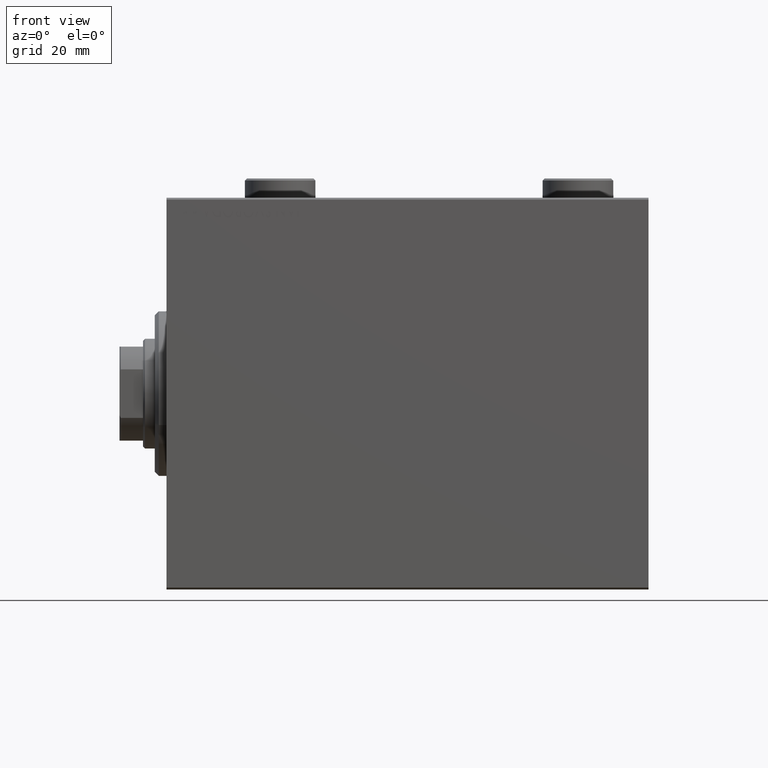
[diagram: clean part render]
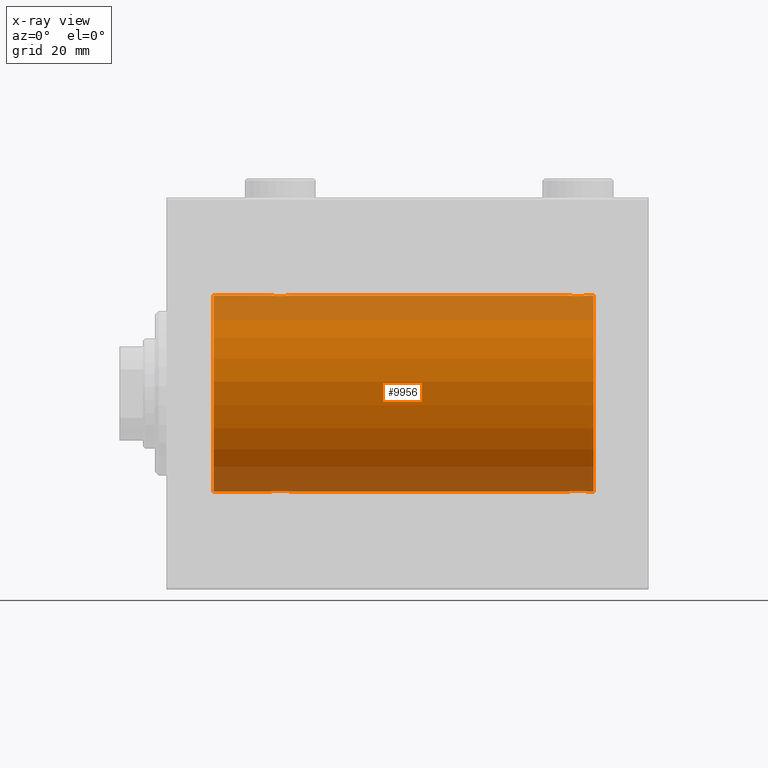
[diagram: x-ray — body ghosted, one internal face saturated and labeled with its STEP entity id]
A machine part, front view, then the same camera in x-ray: the body is ghosted and one INTERNAL B-rep face — a face not visible from any outside direction — is saturated and labeled: STEP entity #9956.
In plain terms, the highlighted cylindrical surface (partial cylindrical patch) has radius 25 mm, axis along (-1, -0, -0).
Its self-contained STEP definition (entity closure, byte-faithful):
#472 = CARTESIAN_POINT ( 'NONE',  ( 29.16706495178059910, -2.499872792855075687, -24.87469871246081965 ) ) ;
#814 = CARTESIAN_POINT ( 'NONE',  ( 103.4746381775692043, -1.987446652080271159, 24.92104239223420592 ) ) ;
#925 = CARTESIAN_POINT ( 'NONE',  ( 26.83172358506042698, -1.255214705003176112, -24.96884293994577320 ) ) ;
#1041 = CARTESIAN_POINT ( 'NONE',  ( 31.16827641493957302, -1.255214705003183440, 24.96884293994578385 ) ) ;
#1152 = CARTESIAN_POINT ( 'NONE',  ( 28.35439333851368815, -2.420689345803754833, -24.88254961038873958 ) ) ;
#1281 = CARTESIAN_POINT ( 'NONE',  ( 107.2476025101955486, -1.106703319666888508, -24.97594585958024282 ) ) ;
#1510 = CARTESIAN_POINT ( 'NONE',  ( 103.0146196628290198, -1.528152964861324570, -24.95362559291378091 ) ) ;
#1728 = CARTESIAN_POINT ( 'NONE',  ( 107.5000000000000000, 3.061616978466108082E-15, -25.00000000000000000 ) ) ;
#2564 = CARTESIAN_POINT ( 'NONE',  ( 105.1632358963854159, -2.500125740978206057, 24.87467329022545570 ) ) ;
#2636 = CARTESIAN_POINT ( 'NONE',  ( 31.43349355239747567, -0.6588655613945881839, 24.99312727339970053 ) ) ;
#2778 = AXIS2_PLACEMENT_3D ( 'NONE', #38154, #10850, #34694 ) ;
#3013 = CARTESIAN_POINT ( 'NONE',  ( 107.4334935523974792, -0.6588655613945869627, 24.99312727339970053 ) ) ;
#3903 = CARTESIAN_POINT ( 'NONE',  ( 28.19564339083697746, -2.372734907014167671, -24.88722742718433167 ) ) ;
#4129 = CARTESIAN_POINT ( 'NONE',  ( 26.50000000000001066, -0.3305063766663757785, -25.00000000000000355 ) ) ;
#4258 = CARTESIAN_POINT ( 'NONE',  ( 26.62784030591392792, -0.8058335233485480753, 24.98746277938383287 ) ) ;
#4486 = CARTESIAN_POINT ( 'NONE',  ( 30.65121133559112820, -1.884161199660616459, 24.92916496727982434 ) ) ;
#4594 = CARTESIAN_POINT ( 'NONE',  ( 30.65383336149337623, -1.881857718844709870, -24.92933960374833191 ) ) ;
#4711 = CARTESIAN_POINT ( 'NONE',  ( 26.57985090779070347, -0.6480119923854229524, 24.99212088949390420 ) ) ;
#4821 = CARTESIAN_POINT ( 'NONE',  ( 30.52536182243080631, -1.987446652080256504, -24.92104239223419881 ) ) ;
#5041 = CIRCLE ( 'NONE', #43811, 25.00000000000000000 ) ;
#5177 = CARTESIAN_POINT ( 'NONE',  ( 27.11587617213528745, -1.651251241585102836, 24.94567559498349141 ) ) ;
#5786 = CARTESIAN_POINT ( 'NONE',  ( 105.6456066614863119, -2.420689345803769044, 24.88254961038873958 ) ) ;
#5855 = CARTESIAN_POINT ( 'NONE',  ( 31.49999999999998579, -0.3305063766663721148, 25.00000000000000000 ) ) ;
#6223 = CARTESIAN_POINT ( 'NONE',  ( 106.1072384583841028, -2.247417070759907709, 24.89885693081946272 ) ) ;
#6452 = CARTESIAN_POINT ( 'NONE',  ( 106.8818595414864632, -1.653834020452947362, 24.94550385189584318 ) ) ;
#6681 = LINE ( 'NONE', #27777, #29220 ) ;
#6810 = FACE_OUTER_BOUND ( 'NONE', #12047, .T. ) ;
#7458 = CARTESIAN_POINT ( 'NONE',  ( 102.5798509077906999, -0.6480119923854288366, 24.99212088949390775 ) ) ;
#7797 = CARTESIAN_POINT ( 'NONE',  ( 27.11814045851354393, -1.653834020452933151, -24.94550385189584674 ) ) ;
#7921 = CARTESIAN_POINT ( 'NONE',  ( 27.01250184165601809, -1.525407911884367085, 24.95379469572361941 ) ) ;
#8032 = CARTESIAN_POINT ( 'NONE',  ( 26.75393620905933645, -1.109818057797413715, -24.97580694515542277 ) ) ;
#8155 = CARTESIAN_POINT ( 'NONE',  ( 105.3294768011426754, -2.483544361357281183, -24.87635491893501793 ) ) ;
#8600 = CARTESIAN_POINT ( 'NONE',  ( 29.80435660916301899, -2.372734907014175665, 24.88722742718433878 ) ) ;
#8608 = CARTESIAN_POINT ( 'NONE',  ( 102.5665064476025066, -0.6588655613946003964, -24.99312727339970053 ) ) ;
#9214 = CARTESIAN_POINT ( 'NONE',  ( 107.2460637909406813, -1.109818057797417490, 24.97580694515541921 ) ) ;
#9285 = CARTESIAN_POINT ( 'NONE',  ( 31.24606379094067066, -1.109818057797417046, 24.97580694515541921 ) ) ;
#9447 = CARTESIAN_POINT ( 'NONE',  ( 106.9853803371709375, -1.528152964861310803, 24.95362559291378091 ) ) ;
#9539 = CARTESIAN_POINT ( 'NONE',  ( 109.0000000000000000, 3.061616997868383043E-15, -25.00000000000000000 ) ) ;
#9881 = CARTESIAN_POINT ( 'NONE',  ( 106.5225677434019502, -1.989585286700258138, 24.92087098724766747 ) ) ;
#9956 = ADVANCED_FACE ( 'NONE', ( #6810 ), #38669, .F. ) ;
#10402 = ORIENTED_EDGE ( 'NONE', *, *, #44524, .T. ) ;
#10467 = DIRECTION ( 'NONE',  ( 0.000000000000000000, 0.000000000000000000, 1.000000000000000000 ) ) ;
#10850 = DIRECTION ( 'NONE',  ( -1.000000000000000000, 0.000000000000000000, 0.000000000000000000 ) ) ;
#11085 = VERTEX_POINT ( 'NONE', #28525 ) ;
#11203 = B_SPLINE_CURVE_WITH_KNOTS ( 'NONE', 3,
 ( #32091, #32545, #14903, #14449, #11468, #11703, #38759, #31861, #43324, #4594, #4821, #14685, #18123, #18574, #25460, #32323, #472, #28882, #28652, #1152, #3903, #29344, #22243, #35771, #25006, #7797, #42636, #925, #8032, #21791, #4129, #43104 ),
 .UNSPECIFIED., .F., .F.,
 ( 4, 2, 2, 2, 2, 2, 2, 2, 2, 2, 2, 2, 2, 2, 2, 4 ),
 ( 0.007821024441662299820, 0.008309723826317909692, 0.008798423210973517830, 0.009287122595629124233, 0.009775821980284728902, 0.01026452136494033357, 0.01075322074959593997, 0.01124192013425154464, 0.01173061951890715104, 0.01221931890356275571, 0.01270801828821836038, 0.01319671767287396852, 0.01368541705752957319, 0.01417411644218517959, 0.01466281582684078426, 0.01564021459615199533 ),
 .UNSPECIFIED. ) ;
#11468 = CARTESIAN_POINT ( 'NONE',  ( 31.37215969408608274, -0.8058335233485438565, -24.98746277938383997 ) ) ;
#11590 = CARTESIAN_POINT ( 'NONE',  ( 29.16323589638543723, -2.500125740978195843, 24.87467329022545570 ) ) ;
#11597 = CARTESIAN_POINT ( 'NONE',  ( 103.4774322565981208, -1.989585286700257694, -24.92087098724766747 ) ) ;
#11703 = CARTESIAN_POINT ( 'NONE',  ( 31.24760251019551305, -1.106703319666880514, -24.97594585958023927 ) ) ;
#11820 = CARTESIAN_POINT ( 'NONE',  ( 26.50000000000000711, -0.1631750940176214526, 25.00000000000000711 ) ) ;
#12041 = CARTESIAN_POINT ( 'NONE',  ( 28.35095609830903740, -2.419770561643910689, 24.88263927071751169 ) ) ;
#12047 = EDGE_LOOP ( 'NONE', ( #32068, #40910, #10402, #41772, #43935, #19470, #45188, #28497, #44794, #34266, #40111, #17008 ) ) ;
#12049 = CARTESIAN_POINT ( 'NONE',  ( 104.8367641036145415, -2.500125740978204725, -24.87467329022545570 ) ) ;
#12203 = DIRECTION ( 'NONE',  ( -1.000000000000000000, 0.000000000000000000, 0.000000000000000000 ) ) ;
#12272 = CARTESIAN_POINT ( 'NONE',  ( 104.1956433908369490, -2.372734907014183214, -24.88722742718433523 ) ) ;
#12437 = CARTESIAN_POINT ( 'NONE',  ( 102.8298870971907775, -1.252049606094350453, 24.96900299967627390 ) ) ;
#12456 = CARTESIAN_POINT ( 'NONE',  ( 109.0000000000000000, 0.000000000000000000, 25.00000000000000000 ) ) ;
#13000 = CARTESIAN_POINT ( 'NONE',  ( 11.99999999999999645, 0.000000000000000000, 25.00000000000000000 ) ) ;
#13105 = CARTESIAN_POINT ( 'NONE',  ( 104.8329350482193973, -2.499872792855093451, 24.87469871246082320 ) ) ;
#13204 = B_SPLINE_CURVE_WITH_KNOTS ( 'NONE', 3,
 ( #1728, #43444, #15491, #26269, #14808, #1281, #25811, #39786, #43670, #32443, #18937, #29012, #43000, #35903, #15715, #8155, #22149, #12049, #22599, #29466, #12272, #22830, #36114, #11597, #26035, #32913, #1510, #39336, #40013, #8608, #25358, #36794 ),
 .UNSPECIFIED., .F., .F.,
 ( 4, 2, 2, 2, 2, 2, 2, 2, 2, 2, 2, 2, 2, 2, 2, 4 ),
 ( 0.007821024441662320636, 0.008309723826317927040, 0.008798423210973533443, 0.009287122595629141580, 0.009775821980284747983, 0.01026452136494035439, 0.01075322074959596079, 0.01124192013425156719, 0.01173061951890717533, 0.01221931890356278000, 0.01270801828821838814, 0.01319671767287399454, 0.01368541705752960094, 0.01417411644218520735, 0.01466281582684081375, 0.01564021459615204390 ),
 .UNSPECIFIED. ) ;
#13330 = CARTESIAN_POINT ( 'NONE',  ( 107.5000000000000426, -0.3305063766663758895, 25.00000000000000355 ) ) ;
#14054 = VERTEX_POINT ( 'NONE', #36780 ) ;
#14385 = CARTESIAN_POINT ( 'NONE',  ( 109.0000000000000000, 3.061616997868383043E-15, -25.00000000000000000 ) ) ;
#14449 = CARTESIAN_POINT ( 'NONE',  ( 31.42014909220928942, -0.6480119923854186226, -24.99212088949390420 ) ) ;
#14570 = CARTESIAN_POINT ( 'NONE',  ( 102.5158215994234183, -0.3254210271412264488, 24.99840249400844883 ) ) ;
#14685 = CARTESIAN_POINT ( 'NONE',  ( 30.25383195424503313, -2.169003991399864884, -24.90589728951138682 ) ) ;
#14808 = CARTESIAN_POINT ( 'NONE',  ( 107.3721596940861076, -0.8058335233485500737, -24.98746277938383287 ) ) ;
#14903 = CARTESIAN_POINT ( 'NONE',  ( 31.48417840057656747, -0.3254210271412188993, -24.99840249400844883 ) ) ;
#15024 = CARTESIAN_POINT ( 'NONE',  ( 30.52256774340189693, -1.989585286700245037, 24.92087098724766747 ) ) ;
#15030 = VERTEX_POINT ( 'NONE', #22052 ) ;
#15179 = B_SPLINE_CURVE_WITH_KNOTS ( 'NONE', 3,
 ( #15872, #26639, #14570, #7458, #21913, #43833, #12437, #40398, #35416, #28546, #814, #28764, #42747, #45171, #37178, #26867, #13105, #2564, #34186, #5786, #37859, #6223, #40849, #9881, #20222, #6452, #9447, #34417, #9214, #3013, #13330, #23209 ),
 .UNSPECIFIED., .F., .F.,
 ( 4, 2, 2, 2, 2, 2, 2, 2, 2, 2, 2, 2, 2, 2, 2, 4 ),
 ( 0.007821024441662341453, 0.008309723826317951326, 0.008798423210973559463, 0.009287122595629169336, 0.009775821980284777474, 0.01026452136494038735, 0.01075322074959599548, 0.01124192013425160536, 0.01173061951890721349, 0.01221931890356282337, 0.01270801828821843324, 0.01319671767287404138, 0.01368541705752964951, 0.01417411644218525939, 0.01466281582684086926, 0.01564021459615210288 ),
 .UNSPECIFIED. ) ;
#15261 = CARTESIAN_POINT ( 'NONE',  ( 26.75239748980449761, -1.106703319666885399, 24.97594585958023572 ) ) ;
#15448 = EDGE_CURVE ( 'NONE', #14054, #16096, #37721, .T. ) ;
#15491 = CARTESIAN_POINT ( 'NONE',  ( 107.4841784005765817, -0.3254210271412224520, -24.99840249400844883 ) ) ;
#15715 = CARTESIAN_POINT ( 'NONE',  ( 105.6490439016909448, -2.419770561643918683, -24.88263927071750814 ) ) ;
#15872 = CARTESIAN_POINT ( 'NONE',  ( 102.5000000000000000, -1.940203396391078535E-23, 25.00000000000000000 ) ) ;
#16035 = CARTESIAN_POINT ( 'NONE',  ( 109.0000000000000000, 3.061616997868383043E-15, -25.00000000000000000 ) ) ;
#16096 = VERTEX_POINT ( 'NONE', #41497 ) ;
#16397 = VERTEX_POINT ( 'NONE', #20366 ) ;
#17008 = ORIENTED_EDGE ( 'NONE', *, *, #30234, .F. ) ;
#17455 = DIRECTION ( 'NONE',  ( -1.000000000000000000, -0.000000000000000000, -0.000000000000000000 ) ) ;
#18123 = CARTESIAN_POINT ( 'NONE',  ( 30.11036796508864555, -2.245863995402895164, -24.89899750494197406 ) ) ;
#18200 = EDGE_CURVE ( 'NONE', #41038, #44313, #32856, .T. ) ;
#18256 = CARTESIAN_POINT ( 'NONE',  ( 27.47463817756919369, -1.987446652080264720, 24.92104239223420592 ) ) ;
#18469 = CARTESIAN_POINT ( 'NONE',  ( 29.64560666148631896, -2.420689345803761050, 24.88254961038873958 ) ) ;
#18574 = CARTESIAN_POINT ( 'NONE',  ( 29.80788342405805835, -2.371528299825740760, -24.88734287464371064 ) ) ;
#18595 = LINE ( 'NONE', #14385, #18918 ) ;
#18918 = VECTOR ( 'NONE', #35708, 1000.000000000000000 ) ;
#18930 = CARTESIAN_POINT ( 'NONE',  ( 26.51582159942343608, -0.3254210271412225630, 24.99840249400844883 ) ) ;
#18937 = CARTESIAN_POINT ( 'NONE',  ( 106.5253618224307957, -1.987446652080270271, -24.92104239223420592 ) ) ;
#18965 = VECTOR ( 'NONE', #27143, 1000.000000000000000 ) ;
#19470 = ORIENTED_EDGE ( 'NONE', *, *, #15448, .T. ) ;
#19830 = LINE ( 'NONE', #34469, #18965 ) ;
#20222 = CARTESIAN_POINT ( 'NONE',  ( 106.6512113355911566, -1.884161199660627561, 24.92916496727982789 ) ) ;
#20366 = CARTESIAN_POINT ( 'NONE',  ( 109.0000000000000000, 0.000000000000000000, 25.00000000000000000 ) ) ;
#20517 = CARTESIAN_POINT ( 'NONE',  ( 102.5000000000000000, -1.940203396391078535E-23, 25.00000000000000000 ) ) ;
#20667 = LINE ( 'NONE', #34629, #35486 ) ;
#21791 = CARTESIAN_POINT ( 'NONE',  ( 26.56650644760253499, -0.6588655613945862966, -24.99312727339971119 ) ) ;
#21913 = CARTESIAN_POINT ( 'NONE',  ( 102.6278403059139350, -0.8058335233485532934, 24.98746277938383287 ) ) ;
#21921 = CARTESIAN_POINT ( 'NONE',  ( 30.25084023924055998, -2.170728182476720391, 24.90574631553725027 ) ) ;
#22052 = CARTESIAN_POINT ( 'NONE',  ( 107.5000000000000000, 2.971051067387116602E-15, 25.00000000000000000 ) ) ;
#22149 = CARTESIAN_POINT ( 'NONE',  ( 105.1670649517806027, -2.499872792855092563, -24.87469871246082320 ) ) ;
#22243 = CARTESIAN_POINT ( 'NONE',  ( 27.74915976075944712, -2.170728182476714174, -24.90574631553725027 ) ) ;
#22599 = CARTESIAN_POINT ( 'NONE',  ( 104.6740342996053670, -2.484007091859773197, -24.87630842367763151 ) ) ;
#22823 = CARTESIAN_POINT ( 'NONE',  ( 31.50000000000000000, -3.359922002512890391E-15, 25.00000000000000000 ) ) ;
#22830 = CARTESIAN_POINT ( 'NONE',  ( 103.8927615416159114, -2.247417070759905933, -24.89885693081946272 ) ) ;
#23103 = EDGE_CURVE ( 'NONE', #33482, #33060, #19830, .T. ) ;
#23209 = CARTESIAN_POINT ( 'NONE',  ( 107.5000000000000000, 2.971051067387116602E-15, 25.00000000000000000 ) ) ;
#23440 = DIRECTION ( 'NONE',  ( 0.000000000000000000, 0.000000000000000000, 1.000000000000000000 ) ) ;
#24201 = EDGE_CURVE ( 'NONE', #33482, #15030, #15179, .T. ) ;
#24936 = EDGE_CURVE ( 'NONE', #41038, #33060, #30426, .T. ) ;
#25006 = CARTESIAN_POINT ( 'NONE',  ( 27.34878866440888601, -1.884161199660611796, -24.92916496727982434 ) ) ;
#25351 = CARTESIAN_POINT ( 'NONE',  ( 26.50000000000000355, -1.940558383798427991E-23, 25.00000000000000000 ) ) ;
#25358 = CARTESIAN_POINT ( 'NONE',  ( 102.5000000000000000, -0.3305063766663817737, -25.00000000000000355 ) ) ;
#25460 = CARTESIAN_POINT ( 'NONE',  ( 29.64904390169096970, -2.419770561643902695, -24.88263927071750459 ) ) ;
#25583 = CARTESIAN_POINT ( 'NONE',  ( 30.98538033717094464, -1.528152964861312801, 24.95362559291378801 ) ) ;
#25604 = VERTEX_POINT ( 'NONE', #39663 ) ;
#25803 = CARTESIAN_POINT ( 'NONE',  ( 27.88963203491136156, -2.245863995402901381, 24.89899750494197050 ) ) ;
#25811 = CARTESIAN_POINT ( 'NONE',  ( 107.1701129028092652, -1.252049606094348011, -24.96900299967627745 ) ) ;
#26028 = CARTESIAN_POINT ( 'NONE',  ( 28.83293504821940090, -2.499872792855082793, 24.87469871246082320 ) ) ;
#26035 = CARTESIAN_POINT ( 'NONE',  ( 103.3487886644089144, -1.884161199660627339, -24.92916496727982789 ) ) ;
#26269 = CARTESIAN_POINT ( 'NONE',  ( 107.4201490922092717, -0.6480119923854245068, -24.99212088949390775 ) ) ;
#26639 = CARTESIAN_POINT ( 'NONE',  ( 102.4999999999999432, -0.1631750940176235343, 25.00000000000000355 ) ) ;
#26867 = CARTESIAN_POINT ( 'NONE',  ( 104.6705231988572962, -2.483544361357281627, 24.87635491893501793 ) ) ;
#27143 = DIRECTION ( 'NONE',  ( -1.000000000000000000, -0.000000000000000000, -0.000000000000000000 ) ) ;
#27777 = CARTESIAN_POINT ( 'NONE',  ( 109.0000000000000000, 3.061616997868383043E-15, -25.00000000000000000 ) ) ;
#28497 = ORIENTED_EDGE ( 'NONE', *, *, #18200, .F. ) ;
#28525 = CARTESIAN_POINT ( 'NONE',  ( 107.5000000000000000, 3.061616978466108082E-15, -25.00000000000000000 ) ) ;
#28546 = CARTESIAN_POINT ( 'NONE',  ( 103.3461666385066025, -1.881857718844725857, 24.92933960374833546 ) ) ;
#28652 = CARTESIAN_POINT ( 'NONE',  ( 28.67403429960539896, -2.484007091859758543, -24.87630842367763151 ) ) ;
#28764 = CARTESIAN_POINT ( 'NONE',  ( 103.7461680457549846, -2.169003991399879983, 24.90589728951138326 ) ) ;
#28882 = CARTESIAN_POINT ( 'NONE',  ( 28.83676410361456632, -2.500125740978188738, -24.87467329022545215 ) ) ;
#28936 = VERTEX_POINT ( 'NONE', #38191 ) ;
#29012 = CARTESIAN_POINT ( 'NONE',  ( 106.2538319542450296, -2.169003991399878650, -24.90589728951138326 ) ) ;
#29220 = VECTOR ( 'NONE', #34859, 1000.000000000000000 ) ;
#29242 = CARTESIAN_POINT ( 'NONE',  ( 29.32596570039460104, -2.484007091859765204, 24.87630842367763506 ) ) ;
#29344 = CARTESIAN_POINT ( 'NONE',  ( 27.89276154161590426, -2.247417070759891278, -24.89885693081946272 ) ) ;
#29458 = CARTESIAN_POINT ( 'NONE',  ( 28.19211657594193809, -2.371528299825749198, 24.88734287464370709 ) ) ;
#29466 = CARTESIAN_POINT ( 'NONE',  ( 104.3543933385136739, -2.420689345803766823, -24.88254961038873958 ) ) ;
#29618 = CARTESIAN_POINT ( 'NONE',  ( 109.0000000000000000, 0.000000000000000000, 0.000000000000000000 ) ) ;
#30234 = EDGE_CURVE ( 'NONE', #16397, #15030, #20667, .T. ) ;
#30426 = B_SPLINE_CURVE_WITH_KNOTS ( 'NONE', 3,
 ( #25351, #11820, #18930, #4711, #4258, #15261, #32906, #7921, #5177, #36107, #18256, #32664, #25803, #29458, #12041, #35658, #26028, #11590, #29242, #18469, #8600, #36570, #21921, #15024, #4486, #32436, #25583, #1041, #9285, #2636, #5855, #22823 ),
 .UNSPECIFIED., .F., .F.,
 ( 4, 2, 2, 2, 2, 2, 2, 2, 2, 2, 2, 2, 2, 2, 2, 4 ),
 ( 0.007821024441662275534, 0.008309723826317880202, 0.008798423210973486605, 0.009287122595629093008, 0.009775821980284697676, 0.01026452136494030234, 0.01075322074959590875, 0.01124192013425151515, 0.01173061951890711982, 0.01221931890356272449, 0.01270801828821833089, 0.01319671767287393729, 0.01368541705752954196, 0.01417411644218514663, 0.01466281582684075303, 0.01564021459615196410 ),
 .UNSPECIFIED. ) ;
#31861 = CARTESIAN_POINT ( 'NONE',  ( 30.98749815834397481, -1.525407911884360868, -24.95379469572361941 ) ) ;
#32068 = ORIENTED_EDGE ( 'NONE', *, *, #40070, .F. ) ;
#32091 = CARTESIAN_POINT ( 'NONE',  ( 31.50000000000000000, 3.061616978460191625E-15, -25.00000000000000000 ) ) ;
#32323 = CARTESIAN_POINT ( 'NONE',  ( 29.32947680114268962, -2.483544361357264751, -24.87635491893502149 ) ) ;
#32436 = CARTESIAN_POINT ( 'NONE',  ( 30.88185954148645962, -1.653834020452937814, 24.94550385189585029 ) ) ;
#32443 = CARTESIAN_POINT ( 'NONE',  ( 106.6538333614933691, -1.881857718844724081, -24.92933960374833546 ) ) ;
#32545 = CARTESIAN_POINT ( 'NONE',  ( 31.49999999999999289, -0.1631750940176170117, -25.00000000000000711 ) ) ;
#32664 = CARTESIAN_POINT ( 'NONE',  ( 27.74616804575498108, -2.169003991399871989, 24.90589728951138326 ) ) ;
#32838 = VECTOR ( 'NONE', #44294, 1000.000000000000000 ) ;
#32856 = LINE ( 'NONE', #12456, #32838 ) ;
#32906 = CARTESIAN_POINT ( 'NONE',  ( 26.82988709719076681, -1.252049606094339795, 24.96900299967627390 ) ) ;
#32913 = CARTESIAN_POINT ( 'NONE',  ( 103.1181404585135510, -1.653834020452947362, -24.94550385189584318 ) ) ;
#33060 = VERTEX_POINT ( 'NONE', #40970 ) ;
#33482 = VERTEX_POINT ( 'NONE', #20517 ) ;
#34186 = CARTESIAN_POINT ( 'NONE',  ( 105.3259657003945904, -2.484007091859774086, 24.87630842367763151 ) ) ;
#34266 = ORIENTED_EDGE ( 'NONE', *, *, #23103, .F. ) ;
#34417 = CARTESIAN_POINT ( 'NONE',  ( 107.1682764149395553, -1.255214705003179221, 24.96884293994577675 ) ) ;
#34469 = CARTESIAN_POINT ( 'NONE',  ( 109.0000000000000000, 0.000000000000000000, 25.00000000000000000 ) ) ;
#34629 = CARTESIAN_POINT ( 'NONE',  ( 109.0000000000000000, 0.000000000000000000, 25.00000000000000000 ) ) ;
#34694 = DIRECTION ( 'NONE',  ( 0.000000000000000000, 0.000000000000000000, 1.000000000000000000 ) ) ;
#34769 = CARTESIAN_POINT ( 'NONE',  ( 109.0000000000000000, 0.000000000000000000, 0.000000000000000000 ) ) ;
#34859 = DIRECTION ( 'NONE',  ( -1.000000000000000000, -0.000000000000000000, -0.000000000000000000 ) ) ;
#35416 = CARTESIAN_POINT ( 'NONE',  ( 103.1158761721352732, -1.651251241585110163, 24.94567559498348430 ) ) ;
#35486 = VECTOR ( 'NONE', #17455, 1000.000000000000000 ) ;
#35599 = CARTESIAN_POINT ( 'NONE',  ( 26.50000000000000355, -1.940558383798427991E-23, 25.00000000000000000 ) ) ;
#35658 = CARTESIAN_POINT ( 'NONE',  ( 28.67052319885732103, -2.483544361357271857, 24.87635491893501438 ) ) ;
#35698 = CIRCLE ( 'NONE', #2778, 25.00000000000000000 ) ;
#35708 = DIRECTION ( 'NONE',  ( -1.000000000000000000, -0.000000000000000000, -0.000000000000000000 ) ) ;
#35771 = CARTESIAN_POINT ( 'NONE',  ( 27.47743225659810307, -1.989585286700239708, -24.92087098724766392 ) ) ;
#35903 = CARTESIAN_POINT ( 'NONE',  ( 105.8078834240580619, -2.371528299825759412, -24.88734287464370709 ) ) ;
#36107 = CARTESIAN_POINT ( 'NONE',  ( 27.34616663850662377, -1.881857718844717642, 24.92933960374833902 ) ) ;
#36114 = CARTESIAN_POINT ( 'NONE',  ( 103.7491597607594684, -2.170728182476731050, -24.90574631553725027 ) ) ;
#36570 = CARTESIAN_POINT ( 'NONE',  ( 30.10723845838410284, -2.247417070759897495, 24.89885693081946272 ) ) ;
#36780 = CARTESIAN_POINT ( 'NONE',  ( 26.50000000000000355, -1.828402720252098442E-15, -25.00000000000000000 ) ) ;
#36794 = CARTESIAN_POINT ( 'NONE',  ( 102.5000000000000000, -1.076612927118312630E-14, -25.00000000000000000 ) ) ;
#37030 = AXIS2_PLACEMENT_3D ( 'NONE', #34769, #38222, #10467 ) ;
#37178 = CARTESIAN_POINT ( 'NONE',  ( 104.3509560983090267, -2.419770561643919127, 24.88263927071750814 ) ) ;
#37439 = EDGE_CURVE ( 'NONE', #16096, #44313, #35698, .T. ) ;
#37498 = DIRECTION ( 'NONE',  ( -1.000000000000000000, -0.000000000000000000, -0.000000000000000000 ) ) ;
#37721 = LINE ( 'NONE', #9539, #43761 ) ;
#37859 = CARTESIAN_POINT ( 'NONE',  ( 105.8043566091630083, -2.372734907014184991, 24.88722742718433523 ) ) ;
#38154 = CARTESIAN_POINT ( 'NONE',  ( 11.99999999999999645, 0.000000000000000000, 0.000000000000000000 ) ) ;
#38191 = CARTESIAN_POINT ( 'NONE',  ( 31.50000000000000000, 3.061616978460191625E-15, -25.00000000000000000 ) ) ;
#38222 = DIRECTION ( 'NONE',  ( -1.000000000000000000, -0.000000000000000000, -0.000000000000000000 ) ) ;
#38669 = CYLINDRICAL_SURFACE ( 'NONE', #37030, 25.00000000000000000 ) ;
#38759 = CARTESIAN_POINT ( 'NONE',  ( 31.17011290280924740, -1.252049606094333578, -24.96900299967627390 ) ) ;
#38775 = EDGE_CURVE ( 'NONE', #25604, #28936, #18595, .T. ) ;
#39336 = CARTESIAN_POINT ( 'NONE',  ( 102.8317235850603879, -1.255214705003194764, -24.96884293994577675 ) ) ;
#39663 = CARTESIAN_POINT ( 'NONE',  ( 102.5000000000000000, -1.076612927118312630E-14, -25.00000000000000000 ) ) ;
#39786 = CARTESIAN_POINT ( 'NONE',  ( 106.9874981583439393, -1.525407911884375300, -24.95379469572361586 ) ) ;
#40013 = CARTESIAN_POINT ( 'NONE',  ( 102.7539362090593187, -1.109818057797429036, -24.97580694515541921 ) ) ;
#40070 = EDGE_CURVE ( 'NONE', #43977, #16397, #5041, .T. ) ;
#40111 = ORIENTED_EDGE ( 'NONE', *, *, #24201, .T. ) ;
#40293 = EDGE_CURVE ( 'NONE', #28936, #14054, #11203, .T. ) ;
#40398 = CARTESIAN_POINT ( 'NONE',  ( 103.0125018416559897, -1.525407911884377965, 24.95379469572361941 ) ) ;
#40849 = CARTESIAN_POINT ( 'NONE',  ( 106.2508402392405458, -2.170728182476731938, 24.90574631553725027 ) ) ;
#40910 = ORIENTED_EDGE ( 'NONE', *, *, #41257, .T. ) ;
#40970 = CARTESIAN_POINT ( 'NONE',  ( 31.50000000000000000, -3.359922002512890391E-15, 25.00000000000000000 ) ) ;
#41038 = VERTEX_POINT ( 'NONE', #35599 ) ;
#41257 = EDGE_CURVE ( 'NONE', #43977, #11085, #6681, .T. ) ;
#41497 = CARTESIAN_POINT ( 'NONE',  ( 11.99999999999999645, 3.061616997868383043E-15, -25.00000000000000000 ) ) ;
#41772 = ORIENTED_EDGE ( 'NONE', *, *, #38775, .T. ) ;
#42636 = CARTESIAN_POINT ( 'NONE',  ( 27.01461966282905891, -1.528152964861306584, -24.95362559291379156 ) ) ;
#42747 = CARTESIAN_POINT ( 'NONE',  ( 103.8896320349113722, -2.245863995402913371, 24.89899750494197050 ) ) ;
#43000 = CARTESIAN_POINT ( 'NONE',  ( 106.1103679650886136, -2.245863995402912927, -24.89899750494197050 ) ) ;
#43104 = CARTESIAN_POINT ( 'NONE',  ( 26.50000000000000355, -1.828402720252098442E-15, -25.00000000000000000 ) ) ;
#43324 = CARTESIAN_POINT ( 'NONE',  ( 30.88412382786471611, -1.651251241585095508, -24.94567559498348785 ) ) ;
#43444 = CARTESIAN_POINT ( 'NONE',  ( 107.5000000000000000, -0.1631750940176189824, -25.00000000000000355 ) ) ;
#43670 = CARTESIAN_POINT ( 'NONE',  ( 106.8841238278646841, -1.651251241585108387, -24.94567559498348430 ) ) ;
#43761 = VECTOR ( 'NONE', #37498, 1000.000000000000000 ) ;
#43811 = AXIS2_PLACEMENT_3D ( 'NONE', #29618, #12203, #23440 ) ;
#43833 = CARTESIAN_POINT ( 'NONE',  ( 102.7523974898045083, -1.106703319666891838, 24.97594585958023217 ) ) ;
#43935 = ORIENTED_EDGE ( 'NONE', *, *, #40293, .T. ) ;
#43977 = VERTEX_POINT ( 'NONE', #16035 ) ;
#44294 = DIRECTION ( 'NONE',  ( -1.000000000000000000, -0.000000000000000000, -0.000000000000000000 ) ) ;
#44313 = VERTEX_POINT ( 'NONE', #13000 ) ;
#44524 = EDGE_CURVE ( 'NONE', #11085, #25604, #13204, .T. ) ;
#44794 = ORIENTED_EDGE ( 'NONE', *, *, #24936, .T. ) ;
#45171 = CARTESIAN_POINT ( 'NONE',  ( 104.1921165759419381, -2.371528299825759856, 24.88734287464370709 ) ) ;
#45188 = ORIENTED_EDGE ( 'NONE', *, *, #37439, .T. ) ;